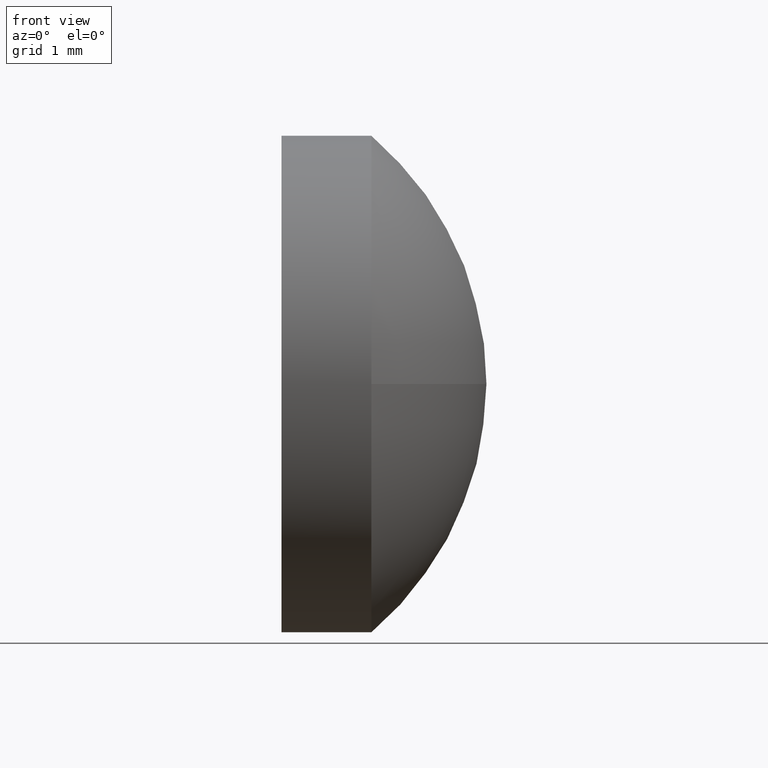
[diagram: clean part render]
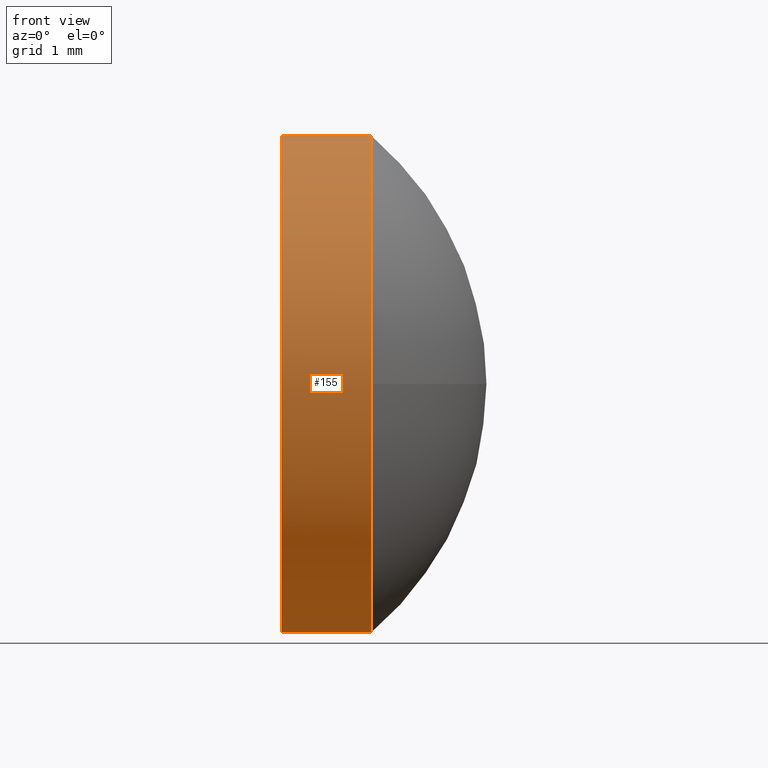
[diagram: same view with one face highlighted and labeled with its STEP entity id]
A machine part, front view. The second image highlights one B-rep face of the part: STEP entity #155.
In plain terms, the highlighted cylindrical surface (partial cylindrical patch) has radius 3.15 mm, axis along (-1, -0, -0).
Its self-contained STEP definition (entity closure, byte-faithful):
#5 = DIRECTION ( 'NONE',  ( -1.000000000000000000, -0.0000000000000000000, -0.0000000000000000000 ) ) ;
#7 = CARTESIAN_POINT ( 'NONE',  ( 430.3296963031011700, 112.9186759989569300, -3.150000000000013700 ) ) ;
#9 = AXIS2_PLACEMENT_3D ( 'NONE', #94, #117, #145 ) ;
#10 = CYLINDRICAL_SURFACE ( 'NONE', #110, 3.150000000000013700 ) ;
#11 = VERTEX_POINT ( 'NONE', #88 ) ;
#12 = VERTEX_POINT ( 'NONE', #44 ) ;
#14 = VECTOR ( 'NONE', #18, 1000.000000000000000 ) ;
#18 = DIRECTION ( 'NONE',  ( -1.000000000000000000, -0.0000000000000000000, -0.0000000000000000000 ) ) ;
#19 = DIRECTION ( 'NONE',  ( 0.0000000000000000000, 0.0000000000000000000, 1.000000000000000000 ) ) ;
#36 = LINE ( 'NONE', #116, #99 ) ;
#37 = ORIENTED_EDGE ( 'NONE', *, *, #184, .T. ) ;
#44 = CARTESIAN_POINT ( 'NONE',  ( 431.4696963031011600, 112.9186759989569300, -3.150000000000013700 ) ) ;
#45 = DIRECTION ( 'NONE',  ( -1.000000000000000000, -0.0000000000000000000, -0.0000000000000000000 ) ) ;
#46 = CARTESIAN_POINT ( 'NONE',  ( 431.4696963031011600, 112.9186759989569300, 0.0000000000000000000 ) ) ;
#48 = VERTEX_POINT ( 'NONE', #128 ) ;
#51 = EDGE_CURVE ( 'NONE', #12, #153, #36, .T. ) ;
#52 = ORIENTED_EDGE ( 'NONE', *, *, #138, .T. ) ;
#58 = AXIS2_PLACEMENT_3D ( 'NONE', #176, #5, #19 ) ;
#59 = VERTEX_POINT ( 'NONE', #172 ) ;
#69 = CIRCLE ( 'NONE', #131, 3.150000000000013700 ) ;
#76 = DIRECTION ( 'NONE',  ( 0.0000000000000000000, 0.0000000000000000000, 1.000000000000000000 ) ) ;
#80 = EDGE_CURVE ( 'NONE', #48, #59, #167, .T. ) ;
#84 = FACE_OUTER_BOUND ( 'NONE', #139, .T. ) ;
#85 = ORIENTED_EDGE ( 'NONE', *, *, #80, .T. ) ;
#88 = CARTESIAN_POINT ( 'NONE',  ( 431.4696963031011600, 109.7686759989568900, -3.857637417314172500E-016 ) ) ;
#91 = DIRECTION ( 'NONE',  ( 0.0000000000000000000, 0.0000000000000000000, 1.000000000000000000 ) ) ;
#94 = CARTESIAN_POINT ( 'NONE',  ( 431.4696963031011600, 112.9186759989569300, 0.0000000000000000000 ) ) ;
#97 = CIRCLE ( 'NONE', #58, 3.150000000000013700 ) ;
#99 = VECTOR ( 'NONE', #171, 1000.000000000000000 ) ;
#110 = AXIS2_PLACEMENT_3D ( 'NONE', #118, #148, #91 ) ;
#116 = CARTESIAN_POINT ( 'NONE',  ( 429.4680681335166800, 112.9186759989569300, -3.150000000000013700 ) ) ;
#117 = DIRECTION ( 'NONE',  ( -1.000000000000000000, -0.0000000000000000000, -0.0000000000000000000 ) ) ;
#118 = CARTESIAN_POINT ( 'NONE',  ( 429.4680681335166800, 112.9186759989569300, 0.0000000000000000000 ) ) ;
#123 = EDGE_CURVE ( 'NONE', #153, #59, #97, .T. ) ;
#128 = CARTESIAN_POINT ( 'NONE',  ( 431.4696963031011600, 112.9186759989569300, 3.150000000000013700 ) ) ;
#131 = AXIS2_PLACEMENT_3D ( 'NONE', #46, #45, #76 ) ;
#138 = EDGE_CURVE ( 'NONE', #12, #11, #146, .T. ) ;
#139 = EDGE_LOOP ( 'NONE', ( #183, #52, #37, #85, #173 ) ) ;
#145 = DIRECTION ( 'NONE',  ( 0.0000000000000000000, 0.0000000000000000000, 1.000000000000000000 ) ) ;
#146 = CIRCLE ( 'NONE', #9, 3.150000000000013700 ) ;
#148 = DIRECTION ( 'NONE',  ( -1.000000000000000000, -0.0000000000000000000, -0.0000000000000000000 ) ) ;
#153 = VERTEX_POINT ( 'NONE', #7 ) ;
#155 = ADVANCED_FACE ( 'NONE', ( #84 ), #10, .T. ) ;
#167 = LINE ( 'NONE', #174, #14 ) ;
#171 = DIRECTION ( 'NONE',  ( -1.000000000000000000, -0.0000000000000000000, -0.0000000000000000000 ) ) ;
#172 = CARTESIAN_POINT ( 'NONE',  ( 430.3296963031011700, 112.9186759989569300, 3.150000000000013700 ) ) ;
#173 = ORIENTED_EDGE ( 'NONE', *, *, #123, .F. ) ;
#174 = CARTESIAN_POINT ( 'NONE',  ( 429.4680681335166800, 112.9186759989569300, 3.150000000000013700 ) ) ;
#176 = CARTESIAN_POINT ( 'NONE',  ( 430.3296963031011700, 112.9186759989569300, 0.0000000000000000000 ) ) ;
#183 = ORIENTED_EDGE ( 'NONE', *, *, #51, .F. ) ;
#184 = EDGE_CURVE ( 'NONE', #11, #48, #69, .T. ) ;